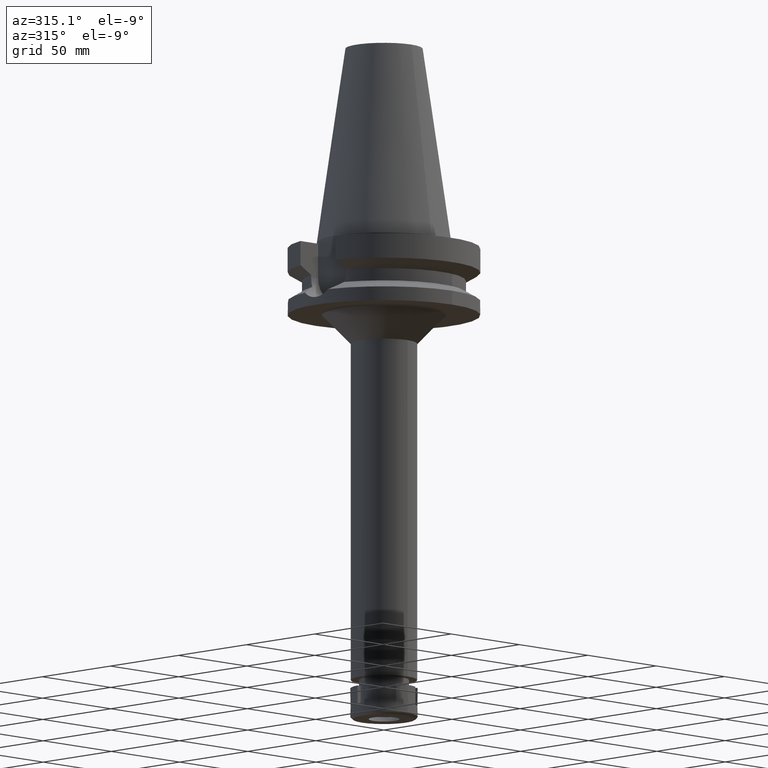
[diagram: clean part render]
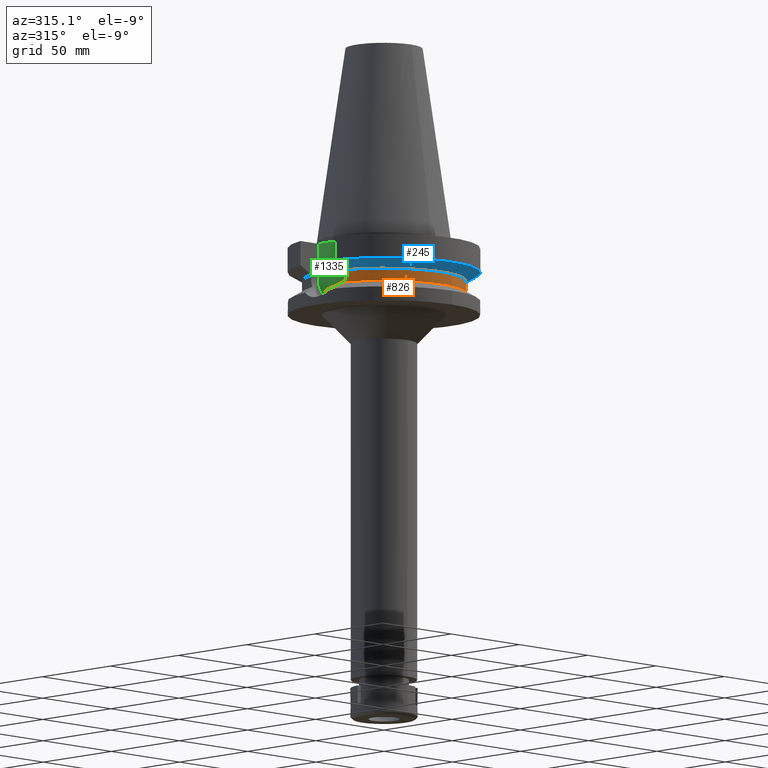
[diagram: same view with three faces highlighted in distinct colors, each labeled with its STEP entity id]
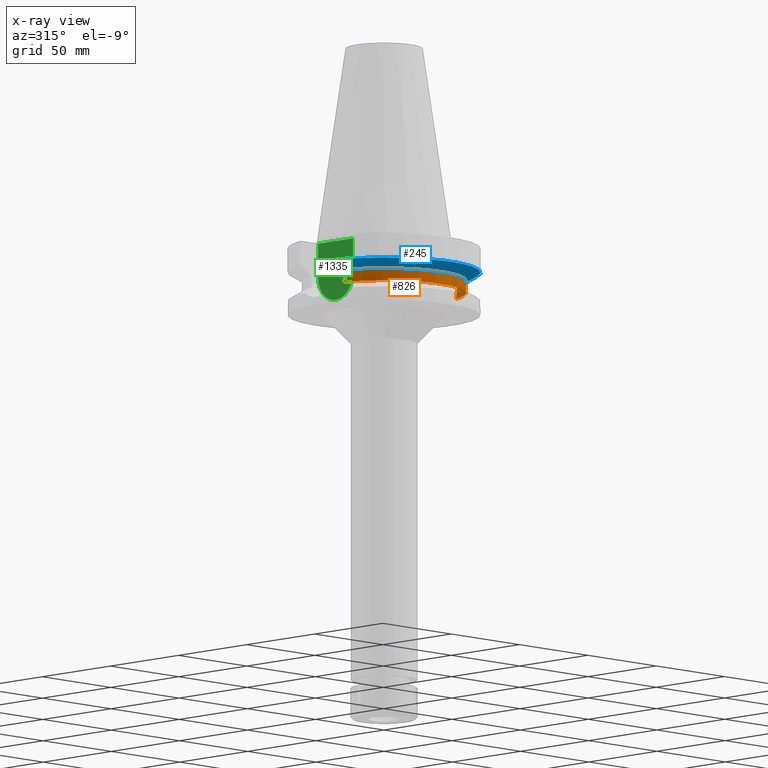
[diagram: x-ray of the same camera — body ghosted, the three highlighted faces saturated]
A machine part, auxiliary view with three faces highlighted in distinct colors.
The next image is the same camera in x-ray (body ghosted, the three faces saturated) — at least one of them is partly hidden behind the body in this view.
Their STEP definitions:

[orange] entity #826 — the highlighted cylindrical surface (partial cylindrical patch) has radius 42.5 mm, axis along (0, 0, -1).
#35 = EDGE_CURVE ( 'NONE', #1867, #1532, #605, .T. ) ;
#92 = CARTESIAN_POINT ( 'NONE',  ( -40.54024898815603706, -12.75863247753766494, -22.93144980652760978 ) ) ;
#114 = CARTESIAN_POINT ( 'NONE',  ( 40.57495726702782690, -12.64634697063399749, -23.43364566692950390 ) ) ;
#136 = CARTESIAN_POINT ( 'NONE',  ( 40.85052569294000335, -11.72538061688000077, -26.40718074535000426 ) ) ;
#249 = DIRECTION ( 'NONE',  ( 0.9531960443486575674, -0.3023529411764863672, 0.0000000000000000000 ) ) ;
#268 = ORIENTED_EDGE ( 'NONE', *, *, #2137, .T. ) ;
#314 = CARTESIAN_POINT ( 'NONE',  ( 40.51083297143000550, -12.84999657435999865, -19.99284554403000058 ) ) ;
#369 = DIRECTION ( 'NONE',  ( -9.390344904618780601E-07, -2.960396942957935590E-06, -0.9999999999951771912 ) ) ;
#461 = ORIENTED_EDGE ( 'NONE', *, *, #35, .T. ) ;
#523 = CYLINDRICAL_SURFACE ( 'NONE', #1658, 42.50000000000000000 ) ;
#533 = VERTEX_POINT ( 'NONE', #1714 ) ;
#564 = ORIENTED_EDGE ( 'NONE', *, *, #573, .F. ) ;
#573 = EDGE_CURVE ( 'NONE', #1867, #1213, #600, .T. ) ;
#600 = B_SPLINE_CURVE_WITH_KNOTS ( 'NONE', 3,
 ( #2846, #2548, #1148, #857, #1166, #1692, #2265, #2289, #1131, #2535, #1392, #92, #2247, #1953 ),
 .UNSPECIFIED., .F., .F.,
 ( 4, 2, 2, 1, 1, 2, 2, 4 ),
 ( 0.0000000000000000000, 0.2500000000000062728, 0.3750000000000088263, 0.4375000000000092149, 0.4687500000000093259, 0.4843750000000085487, 0.5000000000000077716, 1.000000000000000000 ),
 .UNSPECIFIED. ) ;
#605 = CIRCLE ( 'NONE', #2413, 42.50000000000000000 ) ;
#639 = EDGE_CURVE ( 'NONE', #3142, #1532, #3035, .T. ) ;
#717 = DIRECTION ( 'NONE',  ( -0.9611888398338002126, -0.2758913086325000541, 0.0000000000000000000 ) ) ;
#826 = ADVANCED_FACE ( 'NONE', ( #2196 ), #523, .T. ) ;
#846 = LINE ( 'NONE', #314, #1123 ) ;
#857 = CARTESIAN_POINT ( 'NONE',  ( -40.68244033203459509, -12.29668271514778155, -24.88704999020028552 ) ) ;
#910 = EDGE_LOOP ( 'NONE', ( #461, #2978, #3104, #268, #2389, #564 ) ) ;
#928 = CARTESIAN_POINT ( 'NONE',  ( 40.59544176412200756, -12.58034112467462506, -23.76884132011575446 ) ) ;
#929 = VECTOR ( 'NONE', #3453, 1000.000000000000000 ) ;
#1123 = VECTOR ( 'NONE', #369, 1000.000000000000114 ) ;
#1129 = CARTESIAN_POINT ( 'NONE',  ( 0.0000000000000000000, 2.681854025452999794E-14, 118.9899999999999949 ) ) ;
#1131 = CARTESIAN_POINT ( 'NONE',  ( -40.60613092892674558, -12.54580291205682840, -23.92957783935415961 ) ) ;
#1148 = CARTESIAN_POINT ( 'NONE',  ( -40.74530095656257345, -12.08735962576008838, -25.53452175073027064 ) ) ;
#1166 = CARTESIAN_POINT ( 'NONE',  ( -40.66327100472028633, -12.35978856920172042, -24.67232928655891300 ) ) ;
#1213 = VERTEX_POINT ( 'NONE', #1960 ) ;
#1226 = CARTESIAN_POINT ( 'NONE',  ( 40.54025141500855511, -12.75732202933684079, -22.70680722517304062 ) ) ;
#1279 = CARTESIAN_POINT ( 'NONE',  ( 40.51083188482000708, -12.84999999999999964, -21.59153411739117345 ) ) ;
#1376 = DIRECTION ( 'NONE',  ( 0.0000000000000000000, 0.0000000000000000000, -1.000000000000000000 ) ) ;
#1392 = CARTESIAN_POINT ( 'NONE',  ( -40.60092176378661577, -12.56264182350519754, -23.85247009956342268 ) ) ;
#1522 = CARTESIAN_POINT ( 'NONE',  ( -40.51083188481999997, -12.84999999999999964, -21.14999999999999858 ) ) ;
#1532 = VERTEX_POINT ( 'NONE', #136 ) ;
#1560 = VERTEX_POINT ( 'NONE', #1788 ) ;
#1658 = AXIS2_PLACEMENT_3D ( 'NONE', #1129, #2735, #2246 ) ;
#1692 = CARTESIAN_POINT ( 'NONE',  ( -40.63719333504133857, -12.44501332045588171, -24.35254784870662803 ) ) ;
#1714 = CARTESIAN_POINT ( 'NONE',  ( 40.51083188481999997, -12.84999999999999964, -19.99281925464999787 ) ) ;
#1763 = CARTESIAN_POINT ( 'NONE',  ( 40.54944501819246483, -12.72806949229347317, -22.93045211157004459 ) ) ;
#1788 = CARTESIAN_POINT ( 'NONE',  ( -40.51083297203000200, -12.84999657244999938, -19.99284555869999735 ) ) ;
#1800 = CARTESIAN_POINT ( 'NONE',  ( 40.51083188481999997, -12.84999999999999964, -21.14999999999999858 ) ) ;
#1821 = EDGE_CURVE ( 'NONE', #533, #3142, #846, .T. ) ;
#1823 = CARTESIAN_POINT ( 'NONE',  ( 40.56599350392351511, -12.67510228031729369, -23.26591537261227316 ) ) ;
#1867 = VERTEX_POINT ( 'NONE', #1955 ) ;
#1953 = CARTESIAN_POINT ( 'NONE',  ( -40.51083188481999997, -12.84999999999999964, -21.14999999999999858 ) ) ;
#1955 = CARTESIAN_POINT ( 'NONE',  ( -40.85052569294000335, -11.72538061688000077, -26.40718074535000426 ) ) ;
#1960 = CARTESIAN_POINT ( 'NONE',  ( -40.51083188481999997, -12.84999999999999964, -21.14999999999999858 ) ) ;
#2111 = CARTESIAN_POINT ( 'NONE',  ( 40.73816480040193966, -12.11683925496016023, -25.53408892112326001 ) ) ;
#2137 = EDGE_CURVE ( 'NONE', #533, #1560, #2407, .T. ) ;
#2152 = CARTESIAN_POINT ( 'NONE',  ( 40.51083188481999997, -12.84999999999999964, -21.14999999999999858 ) ) ;
#2196 = FACE_OUTER_BOUND ( 'NONE', #910, .T. ) ;
#2246 = DIRECTION ( 'NONE',  ( 0.0000000000000000000, -1.000000000000000000, 0.0000000000000000000 ) ) ;
#2247 = CARTESIAN_POINT ( 'NONE',  ( -40.51083188481999997, -12.84999999999998543, -22.03306381036157902 ) ) ;
#2265 = CARTESIAN_POINT ( 'NONE',  ( -40.62482358052496778, -12.48526759179720713, -24.19323090757233530 ) ) ;
#2289 = CARTESIAN_POINT ( 'NONE',  ( -40.61156309082138449, -12.52823235210636810, -24.00849456404459303 ) ) ;
#2310 = CARTESIAN_POINT ( 'NONE',  ( 40.58662165106743913, -12.60879295188107818, -23.62921742826470606 ) ) ;
#2340 = CARTESIAN_POINT ( 'NONE',  ( 0.0000000000000000000, 0.0000000000000000000, -26.40718074535000426 ) ) ;
#2389 = ORIENTED_EDGE ( 'NONE', *, *, #2963, .F. ) ;
#2397 = DIRECTION ( 'NONE',  ( 0.0000000000000000000, 0.0000000000000000000, 1.000000000000000000 ) ) ;
#2407 = CIRCLE ( 'NONE', #2466, 42.50000000000002132 ) ;
#2413 = AXIS2_PLACEMENT_3D ( 'NONE', #2340, #2397, #717 ) ;
#2466 = AXIS2_PLACEMENT_3D ( 'NONE', #3042, #1376, #249 ) ;
#2535 = CARTESIAN_POINT ( 'NONE',  ( -40.60256524435725112, -12.55733085646615343, -23.87702501536848132 ) ) ;
#2548 = CARTESIAN_POINT ( 'NONE',  ( -40.79434489636125960, -11.92111115639619534, -25.97063211114206638 ) ) ;
#2659 = CARTESIAN_POINT ( 'NONE',  ( 40.65435306121712955, -12.39003696591579384, -24.66355730016733361 ) ) ;
#2735 = DIRECTION ( 'NONE',  ( 0.0000000000000000000, 0.0000000000000000000, -1.000000000000000000 ) ) ;
#2846 = CARTESIAN_POINT ( 'NONE',  ( -40.85052569294000335, -11.72538061688000077, -26.40718074535000426 ) ) ;
#2867 = CARTESIAN_POINT ( 'NONE',  ( 40.85052569294000335, -11.72538061688000077, -26.40718074535000426 ) ) ;
#2886 = CARTESIAN_POINT ( 'NONE',  ( 40.59187924288824689, -12.59183691188247423, -23.71299743614371991 ) ) ;
#2941 = CARTESIAN_POINT ( 'NONE',  ( 40.59736351957839418, -12.57413630430450802, -23.79845512724742207 ) ) ;
#2963 = EDGE_CURVE ( 'NONE', #1213, #1560, #2983, .T. ) ;
#2978 = ORIENTED_EDGE ( 'NONE', *, *, #639, .F. ) ;
#2983 = LINE ( 'NONE', #1522, #929 ) ;
#3035 = B_SPLINE_CURVE_WITH_KNOTS ( 'NONE', 3,
 ( #1800, #1279, #3502, #1226, #1763, #1823, #114, #2310, #2886, #928, #2941, #2659, #2111, #2867 ),
 .UNSPECIFIED., .F., .F.,
 ( 4, 2, 2, 1, 1, 2, 2, 4 ),
 ( 0.0000000000000000000, 0.2500000000000140998, 0.3750000000000211497, 0.4375000000000236478, 0.4687500000000249245, 0.4843750000000254241, 0.5000000000000258682, 1.000000000000000000 ),
 .UNSPECIFIED. ) ;
#3042 = CARTESIAN_POINT ( 'NONE',  ( 0.0000000000000000000, 1.006319759053999930E-14, -19.99281925464999787 ) ) ;
#3104 = ORIENTED_EDGE ( 'NONE', *, *, #1821, .F. ) ;
#3142 = VERTEX_POINT ( 'NONE', #2152 ) ;
#3453 = DIRECTION ( 'NONE',  ( -9.395584592292728125E-07, 2.962048808702914309E-06, 0.9999999999951717511 ) ) ;
#3502 = CARTESIAN_POINT ( 'NONE',  ( 40.51818676736714053, -12.82722303781356032, -22.03685146693273822 ) ) ;

[blue] entity #245 — the highlighted conical surface has half-angle 60 deg.
#98 = AXIS2_PLACEMENT_3D ( 'NONE', #3469, #1765, #2887 ) ;
#245 = ADVANCED_FACE ( 'NONE', ( #3551 ), #3103, .T. ) ;
#249 = DIRECTION ( 'NONE',  ( 0.9531960443486575674, -0.3023529411764863672, 0.0000000000000000000 ) ) ;
#508 = DIRECTION ( 'NONE',  ( 0.0000000000000000000, 1.000000000000000000, 0.0000000000000000000 ) ) ;
#533 = VERTEX_POINT ( 'NONE', #1714 ) ;
#1304 = ORIENTED_EDGE ( 'NONE', *, *, #3152, .T. ) ;
#1326 = CARTESIAN_POINT ( 'NONE',  ( -42.90862489405132152, -12.84999313793018416, -18.67324780319469113 ) ) ;
#1342 = CARTESIAN_POINT ( 'NONE',  ( 48.32056912779999891, -12.85000385857999916, -15.66265767091000072 ) ) ;
#1376 = DIRECTION ( 'NONE',  ( 0.0000000000000000000, 0.0000000000000000000, -1.000000000000000000 ) ) ;
#1541 = AXIS2_PLACEMENT_3D ( 'NONE', #2702, #2675, #508 ) ;
#1560 = VERTEX_POINT ( 'NONE', #1788 ) ;
#1678 = CARTESIAN_POINT ( 'NONE',  ( -48.32056912814000071, -12.85000385727999905, -15.66265768250999990 ) ) ;
#1685 = VERTEX_POINT ( 'NONE', #1342 ) ;
#1714 = CARTESIAN_POINT ( 'NONE',  ( 40.51083188481999997, -12.84999999999999964, -19.99281925464999787 ) ) ;
#1765 = DIRECTION ( 'NONE',  ( 0.0000000000000000000, 0.0000000000000000000, 1.000000000000000000 ) ) ;
#1788 = CARTESIAN_POINT ( 'NONE',  ( -40.51083297203000200, -12.84999657244999938, -19.99284555869999735 ) ) ;
#1981 = EDGE_CURVE ( 'NONE', #3136, #1685, #3044, .T. ) ;
#1985 = B_SPLINE_CURVE_WITH_KNOTS ( 'NONE', 3,
 ( #3028, #3577, #1326, #2450 ),
 .UNSPECIFIED., .F., .F.,
 ( 4, 4 ),
 ( 0.0000000000000000000, 1.000000000000000000 ),
 .UNSPECIFIED. ) ;
#2137 = EDGE_CURVE ( 'NONE', #533, #1560, #2407, .T. ) ;
#2139 = CARTESIAN_POINT ( 'NONE',  ( 45.51180301818635598, -12.85000771250647134, -17.22986482497763561 ) ) ;
#2266 = ORIENTED_EDGE ( 'NONE', *, *, #2137, .F. ) ;
#2350 = ORIENTED_EDGE ( 'NONE', *, *, #1981, .F. ) ;
#2407 = CIRCLE ( 'NONE', #2466, 42.50000000000002132 ) ;
#2450 = CARTESIAN_POINT ( 'NONE',  ( -40.51083297203000200, -12.84999657244999938, -19.99284555869999735 ) ) ;
#2466 = AXIS2_PLACEMENT_3D ( 'NONE', #3042, #1376, #249 ) ;
#2510 = ORIENTED_EDGE ( 'NONE', *, *, #2549, .T. ) ;
#2549 = EDGE_CURVE ( 'NONE', #533, #1685, #2829, .T. ) ;
#2554 = EDGE_LOOP ( 'NONE', ( #1304, #2266, #2510, #2350 ) ) ;
#2675 = DIRECTION ( 'NONE',  ( 0.0000000000000000000, 0.0000000000000000000, 1.000000000000000000 ) ) ;
#2702 = CARTESIAN_POINT ( 'NONE',  ( 0.0000000000000000000, 1.006319759053999930E-14, -17.82775574519000017 ) ) ;
#2829 = B_SPLINE_CURVE_WITH_KNOTS ( 'NONE', 3,
 ( #2987, #2970, #2139, #3200 ),
 .UNSPECIFIED., .F., .F.,
 ( 4, 4 ),
 ( 0.0000000000000000000, 1.000000000000000000 ),
 .UNSPECIFIED. ) ;
#2887 = DIRECTION ( 'NONE',  ( 0.0000000000000000000, -1.000000000000000000, 0.0000000000000000000 ) ) ;
#2970 = CARTESIAN_POINT ( 'NONE',  ( 42.90863232016216244, -12.84999314232176104, -18.67324368506743326 ) ) ;
#2987 = CARTESIAN_POINT ( 'NONE',  ( 40.51083188481999997, -12.84999999999999964, -19.99281925464999787 ) ) ;
#3028 = CARTESIAN_POINT ( 'NONE',  ( -48.32056912814000071, -12.85000385727999905, -15.66265768250999990 ) ) ;
#3042 = CARTESIAN_POINT ( 'NONE',  ( 0.0000000000000000000, 1.006319759053999930E-14, -19.99281925464999787 ) ) ;
#3044 = CIRCLE ( 'NONE', #98, 50.00000000000000000 ) ;
#3103 = CONICAL_SURFACE ( 'NONE', #1541, 46.25000000000000000, 1.047197551196400456 ) ;
#3136 = VERTEX_POINT ( 'NONE', #1678 ) ;
#3152 = EDGE_CURVE ( 'NONE', #3136, #1560, #1985, .T. ) ;
#3200 = CARTESIAN_POINT ( 'NONE',  ( 48.32056912779999891, -12.85000385857999916, -15.66265767091000072 ) ) ;
#3469 = CARTESIAN_POINT ( 'NONE',  ( 0.0000000000000000000, 1.006319759053999930E-14, -15.66269223573000069 ) ) ;
#3551 = FACE_OUTER_BOUND ( 'NONE', #2554, .T. ) ;
#3577 = CARTESIAN_POINT ( 'NONE',  ( -45.51179901536024630, -12.85000770991706176, -17.22986705878139446 ) ) ;

[green] entity #1335 — the highlighted planar face has unit normal (-1, 0, 0).
#31 = AXIS2_PLACEMENT_3D ( 'NONE', #2877, #642, #607 ) ;
#100 = ORIENTED_EDGE ( 'NONE', *, *, #3105, .T. ) ;
#255 = VERTEX_POINT ( 'NONE', #1603 ) ;
#536 = VECTOR ( 'NONE', #3289, 1000.000000000000000 ) ;
#552 = VERTEX_POINT ( 'NONE', #2830 ) ;
#607 = DIRECTION ( 'NONE',  ( 0.0000000000000000000, 0.0000000000000000000, -1.000000000000000000 ) ) ;
#642 = DIRECTION ( 'NONE',  ( 1.000000000000000000, 0.0000000000000000000, 0.0000000000000000000 ) ) ;
#847 = LINE ( 'NONE', #2470, #536 ) ;
#853 = EDGE_LOOP ( 'NONE', ( #1346, #1370, #2968, #100 ) ) ;
#862 = CARTESIAN_POINT ( 'NONE',  ( -35.39999999999999858, 2.015768631397000034E-14, 0.0000000000000000000 ) ) ;
#938 = FACE_OUTER_BOUND ( 'NONE', #853, .T. ) ;
#980 = VERTEX_POINT ( 'NONE', #1969 ) ;
#1185 = EDGE_CURVE ( 'NONE', #552, #2257, #2107, .T. ) ;
#1214 = PLANE ( 'NONE',  #3092 ) ;
#1335 = ADVANCED_FACE ( 'NONE', ( #938 ), #1214, .T. ) ;
#1340 = DIRECTION ( 'NONE',  ( 0.0000000000000000000, 0.0000000000000000000, 1.000000000000000000 ) ) ;
#1346 = ORIENTED_EDGE ( 'NONE', *, *, #2144, .F. ) ;
#1370 = ORIENTED_EDGE ( 'NONE', *, *, #1185, .F. ) ;
#1391 = EDGE_CURVE ( 'NONE', #255, #552, #3452, .T. ) ;
#1575 = DIRECTION ( 'NONE',  ( 0.0000000000000000000, 0.0000000000000000000, -1.000000000000000000 ) ) ;
#1603 = CARTESIAN_POINT ( 'NONE',  ( -35.39999999999999858, -12.84999999999999964, -3.000000000000000000 ) ) ;
#1698 = VECTOR ( 'NONE', #1575, 1000.000000000000000 ) ;
#1969 = CARTESIAN_POINT ( 'NONE',  ( -35.39999999999999858, 12.84999999999999964, -3.000000000000000000 ) ) ;
#2063 = CARTESIAN_POINT ( 'NONE',  ( -35.39999999999999858, -12.84999999999999964, -3.000000000000000000 ) ) ;
#2107 = CIRCLE ( 'NONE', #31, 12.85000000000000320 ) ;
#2144 = EDGE_CURVE ( 'NONE', #2257, #980, #2440, .T. ) ;
#2257 = VERTEX_POINT ( 'NONE', #3022 ) ;
#2317 = DIRECTION ( 'NONE',  ( 0.0000000000000000000, 0.0000000000000000000, 1.000000000000000000 ) ) ;
#2346 = VECTOR ( 'NONE', #1340, 1000.000000000000000 ) ;
#2440 = LINE ( 'NONE', #3009, #2346 ) ;
#2470 = CARTESIAN_POINT ( 'NONE',  ( -35.39999999999999858, -12.84999999999999964, -3.000000000000000000 ) ) ;
#2830 = CARTESIAN_POINT ( 'NONE',  ( -35.39999999999999858, -12.84999999999999964, -21.14999999999999858 ) ) ;
#2877 = CARTESIAN_POINT ( 'NONE',  ( -35.39999999999999858, 1.497743035356999952E-14, -21.14999999999999858 ) ) ;
#2968 = ORIENTED_EDGE ( 'NONE', *, *, #1391, .F. ) ;
#3009 = CARTESIAN_POINT ( 'NONE',  ( -35.39999999999999858, 12.84999999999999964, -21.14999999999999858 ) ) ;
#3022 = CARTESIAN_POINT ( 'NONE',  ( -35.39999999999999858, 12.84999999999999964, -21.14999999999999858 ) ) ;
#3092 = AXIS2_PLACEMENT_3D ( 'NONE', #862, #3414, #2317 ) ;
#3105 = EDGE_CURVE ( 'NONE', #255, #980, #847, .T. ) ;
#3289 = DIRECTION ( 'NONE',  ( 0.0000000000000000000, 1.000000000000000000, 0.0000000000000000000 ) ) ;
#3414 = DIRECTION ( 'NONE',  ( -1.000000000000000000, 0.0000000000000000000, 0.0000000000000000000 ) ) ;
#3452 = LINE ( 'NONE', #2063, #1698 ) ;